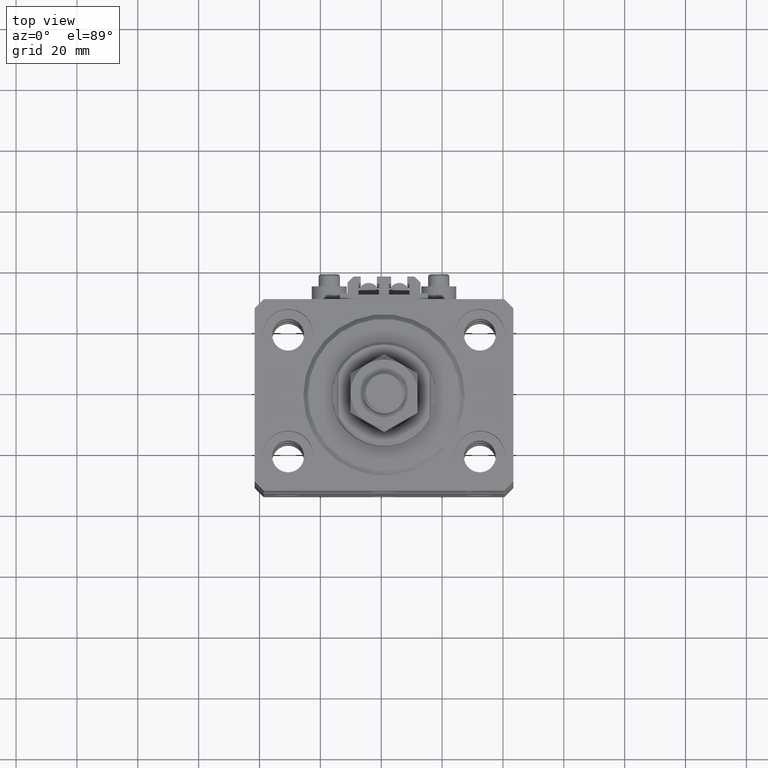
[diagram: clean part render]
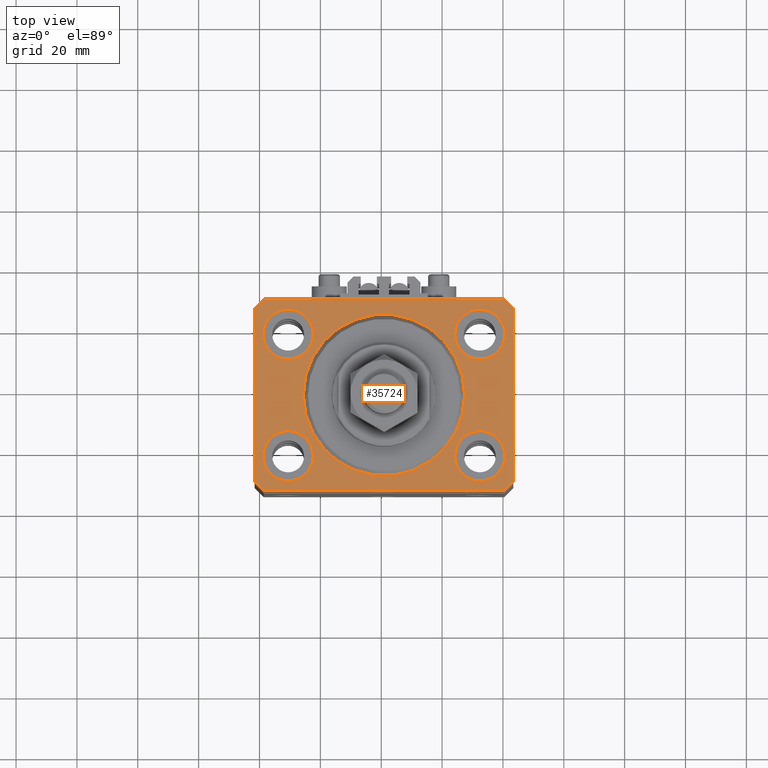
[diagram: same view with one face highlighted and labeled with its STEP entity id]
A machine part, top view. The second image highlights one B-rep face of the part: STEP entity #35724.
In plain terms, the highlighted planar face has unit normal (0, 0, 1).
Its self-contained STEP definition (entity closure, byte-faithful):
#276 = VERTEX_POINT ( 'NONE', #24811 ) ;
#809 = EDGE_CURVE ( 'NONE', #11277, #9018, #39963, .T. ) ;
#961 = EDGE_CURVE ( 'NONE', #9018, #11277, #24472, .T. ) ;
#1113 = PLANE ( 'NONE',  #34952 ) ;
#1136 = DIRECTION ( 'NONE',  ( 0.7071067811865483499, 0.7071067811865466846, 0.000000000000000000 ) ) ;
#2041 = EDGE_LOOP ( 'NONE', ( #31960, #37323 ) ) ;
#2392 = CARTESIAN_POINT ( 'NONE',  ( 42.50000000000051870, 28.49999999999995381, 0.000000000000000000 ) ) ;
#2834 = ORIENTED_EDGE ( 'NONE', *, *, #44734, .F. ) ;
#3242 = AXIS2_PLACEMENT_3D ( 'NONE', #27439, #39952, #12629 ) ;
#3434 = CARTESIAN_POINT ( 'NONE',  ( 0.000000000000000000, 0.000000000000000000, 0.000000000000000000 ) ) ;
#3747 = VERTEX_POINT ( 'NONE', #43837 ) ;
#4176 = FACE_BOUND ( 'NONE', #4763, .T. ) ;
#4757 = DIRECTION ( 'NONE',  ( -0.7071067811865471286, -0.7071067811865479058, 0.000000000000000000 ) ) ;
#4763 = EDGE_LOOP ( 'NONE', ( #33571, #2834 ) ) ;
#5382 = CARTESIAN_POINT ( 'NONE',  ( -42.50000000000000000, -28.50000000000000000, 0.000000000000000000 ) ) ;
#6067 = VECTOR ( 'NONE', #19506, 1000.000000000000000 ) ;
#6221 = CARTESIAN_POINT ( 'NONE',  ( 23.25000000000000355, -20.00000000000000000, 0.000000000000000000 ) ) ;
#6805 = DIRECTION ( 'NONE',  ( 1.000000000000000000, 0.000000000000000000, 0.000000000000000000 ) ) ;
#7392 = DIRECTION ( 'NONE',  ( 0.000000000000000000, 0.000000000000000000, 1.000000000000000000 ) ) ;
#8002 = CARTESIAN_POINT ( 'NONE',  ( 0.000000000000000000, 0.000000000000000000, 0.000000000000000000 ) ) ;
#8266 = FACE_BOUND ( 'NONE', #2041, .T. ) ;
#8522 = CIRCLE ( 'NONE', #16699, 8.250000000000000000 ) ;
#8847 = LINE ( 'NONE', #48166, #41062 ) ;
#9018 = VERTEX_POINT ( 'NONE', #32943 ) ;
#9051 = VERTEX_POINT ( 'NONE', #9440 ) ;
#9245 = DIRECTION ( 'NONE',  ( 0.000000000000000000, -1.000000000000000000, 0.000000000000000000 ) ) ;
#9440 = CARTESIAN_POINT ( 'NONE',  ( -39.50000000000000711, 31.50000000000000000, 0.000000000000000000 ) ) ;
#9830 = EDGE_CURVE ( 'NONE', #44984, #30220, #37388, .T. ) ;
#9903 = CIRCLE ( 'NONE', #26217, 8.249999999999992895 ) ;
#10347 = ORIENTED_EDGE ( 'NONE', *, *, #19353, .T. ) ;
#10356 = DIRECTION ( 'NONE',  ( 0.000000000000000000, 0.000000000000000000, 1.000000000000000000 ) ) ;
#10391 = CARTESIAN_POINT ( 'NONE',  ( 31.50000000000000000, -20.00000000000000000, 0.000000000000000000 ) ) ;
#10861 = ORIENTED_EDGE ( 'NONE', *, *, #809, .F. ) ;
#11277 = VERTEX_POINT ( 'NONE', #16932 ) ;
#11604 = CARTESIAN_POINT ( 'NONE',  ( -39.50000000000000711, -31.50000000000000000, 0.000000000000000000 ) ) ;
#11668 = VECTOR ( 'NONE', #9245, 1000.000000000000000 ) ;
#12530 = EDGE_LOOP ( 'NONE', ( #37161, #12740 ) ) ;
#12612 = AXIS2_PLACEMENT_3D ( 'NONE', #42890, #7392, #38294 ) ;
#12629 = DIRECTION ( 'NONE',  ( 1.000000000000000000, 0.000000000000000000, 0.000000000000000000 ) ) ;
#12715 = EDGE_CURVE ( 'NONE', #15841, #21659, #50018, .T. ) ;
#12740 = ORIENTED_EDGE ( 'NONE', *, *, #36508, .F. ) ;
#13931 = DIRECTION ( 'NONE',  ( 0.000000000000000000, 0.000000000000000000, 1.000000000000000000 ) ) ;
#14156 = EDGE_LOOP ( 'NONE', ( #27503, #45911 ) ) ;
#14193 = DIRECTION ( 'NONE',  ( 1.000000000000000000, 0.000000000000000000, 0.000000000000000000 ) ) ;
#14235 = CIRCLE ( 'NONE', #12612, 8.249999999999992895 ) ;
#14463 = LINE ( 'NONE', #46109, #46526 ) ;
#14717 = EDGE_CURVE ( 'NONE', #276, #3747, #36274, .T. ) ;
#14777 = DIRECTION ( 'NONE',  ( 0.000000000000000000, 0.000000000000000000, 1.000000000000000000 ) ) ;
#14857 = EDGE_CURVE ( 'NONE', #21659, #15841, #14235, .T. ) ;
#15171 = EDGE_CURVE ( 'NONE', #3747, #276, #8522, .T. ) ;
#15221 = ORIENTED_EDGE ( 'NONE', *, *, #24727, .T. ) ;
#15400 = CIRCLE ( 'NONE', #21933, 8.249999999999992895 ) ;
#15673 = FACE_BOUND ( 'NONE', #12530, .T. ) ;
#15841 = VERTEX_POINT ( 'NONE', #23048 ) ;
#16699 = AXIS2_PLACEMENT_3D ( 'NONE', #36212, #19855, #20363 ) ;
#16932 = CARTESIAN_POINT ( 'NONE',  ( -23.25000000000000000, -20.00000000000000000, 0.000000000000000000 ) ) ;
#17401 = DIRECTION ( 'NONE',  ( 0.000000000000000000, 0.000000000000000000, 1.000000000000000000 ) ) ;
#17593 = EDGE_CURVE ( 'NONE', #9051, #19046, #8847, .T. ) ;
#17968 = DIRECTION ( 'NONE',  ( -0.7071067811865356934, 0.7071067811865594521, 0.000000000000000000 ) ) ;
#18334 = VECTOR ( 'NONE', #32878, 1000.000000000000000 ) ;
#18597 = CARTESIAN_POINT ( 'NONE',  ( 31.50000000000000000, 20.00000000000001066, 0.000000000000000000 ) ) ;
#18859 = EDGE_CURVE ( 'NONE', #27591, #40600, #20554, .T. ) ;
#18875 = LINE ( 'NONE', #46702, #47733 ) ;
#19046 = VERTEX_POINT ( 'NONE', #45883 ) ;
#19353 = EDGE_CURVE ( 'NONE', #40672, #27591, #42237, .T. ) ;
#19506 = DIRECTION ( 'NONE',  ( 1.000000000000000000, 0.000000000000000000, 0.000000000000000000 ) ) ;
#19726 = VERTEX_POINT ( 'NONE', #25251 ) ;
#19855 = DIRECTION ( 'NONE',  ( 0.000000000000000000, 0.000000000000000000, 1.000000000000000000 ) ) ;
#20100 = EDGE_CURVE ( 'NONE', #30220, #9051, #25197, .T. ) ;
#20363 = DIRECTION ( 'NONE',  ( 1.000000000000000000, 0.000000000000000000, 0.000000000000000000 ) ) ;
#20554 = LINE ( 'NONE', #36138, #29690 ) ;
#21659 = VERTEX_POINT ( 'NONE', #6221 ) ;
#21933 = AXIS2_PLACEMENT_3D ( 'NONE', #31835, #31579, #35144 ) ;
#21963 = AXIS2_PLACEMENT_3D ( 'NONE', #33352, #13931, #45330 ) ;
#23048 = CARTESIAN_POINT ( 'NONE',  ( 39.74999999999999289, -20.00000000000000000, 0.000000000000000000 ) ) ;
#24074 = DIRECTION ( 'NONE',  ( 0.000000000000000000, 0.000000000000000000, 1.000000000000000000 ) ) ;
#24362 = FACE_BOUND ( 'NONE', #14156, .T. ) ;
#24472 = CIRCLE ( 'NONE', #3242, 8.250000000000000000 ) ;
#24727 = EDGE_CURVE ( 'NONE', #39354, #40672, #18875, .T. ) ;
#24811 = CARTESIAN_POINT ( 'NONE',  ( -23.25000000000000000, 20.00000000000000000, 0.000000000000000000 ) ) ;
#25197 = LINE ( 'NONE', #28279, #18334 ) ;
#25251 = CARTESIAN_POINT ( 'NONE',  ( 26.50000000000000355, 0.000000000000000000, 0.000000000000000000 ) ) ;
#25785 = DIRECTION ( 'NONE',  ( 1.000000000000000000, 0.000000000000000000, 0.000000000000000000 ) ) ;
#25970 = DIRECTION ( 'NONE',  ( 0.000000000000000000, 0.000000000000000000, 1.000000000000000000 ) ) ;
#26103 = CIRCLE ( 'NONE', #42396, 26.50000000000000355 ) ;
#26217 = AXIS2_PLACEMENT_3D ( 'NONE', #18597, #14777, #25785 ) ;
#27040 = DIRECTION ( 'NONE',  ( 0.7071067811865471286, -0.7071067811865479058, 0.000000000000000000 ) ) ;
#27439 = CARTESIAN_POINT ( 'NONE',  ( -31.50000000000000000, -20.00000000000000000, 0.000000000000000000 ) ) ;
#27503 = ORIENTED_EDGE ( 'NONE', *, *, #14717, .F. ) ;
#27591 = VERTEX_POINT ( 'NONE', #39829 ) ;
#28279 = CARTESIAN_POINT ( 'NONE',  ( 39.50000000000056843, 31.50000000000000000, 0.000000000000000000 ) ) ;
#28402 = CARTESIAN_POINT ( 'NONE',  ( -31.50000000000000000, 20.00000000000000000, 0.000000000000000000 ) ) ;
#28659 = LINE ( 'NONE', #47808, #11668 ) ;
#29046 = ORIENTED_EDGE ( 'NONE', *, *, #42278, .T. ) ;
#29085 = EDGE_LOOP ( 'NONE', ( #36841, #31646, #29046, #15221, #10347, #42207, #31861, #50400 ) ) ;
#29690 = VECTOR ( 'NONE', #1136, 1000.000000000000000 ) ;
#30220 = VERTEX_POINT ( 'NONE', #42972 ) ;
#30573 = CARTESIAN_POINT ( 'NONE',  ( -39.50000000000000711, -31.50000000000000000, 0.000000000000000000 ) ) ;
#30972 = CARTESIAN_POINT ( 'NONE',  ( 23.25000000000000355, 20.00000000000001066, 0.000000000000000000 ) ) ;
#31526 = DIRECTION ( 'NONE',  ( 0.000000000000000000, 0.000000000000000000, 1.000000000000000000 ) ) ;
#31579 = DIRECTION ( 'NONE',  ( 0.000000000000000000, 0.000000000000000000, 1.000000000000000000 ) ) ;
#31646 = ORIENTED_EDGE ( 'NONE', *, *, #17593, .T. ) ;
#31748 = CARTESIAN_POINT ( 'NONE',  ( 42.50000000000051870, 28.49999999999995381, 0.000000000000000000 ) ) ;
#31835 = CARTESIAN_POINT ( 'NONE',  ( 31.50000000000000000, 20.00000000000001066, 0.000000000000000000 ) ) ;
#31861 = ORIENTED_EDGE ( 'NONE', *, *, #39090, .T. ) ;
#31960 = ORIENTED_EDGE ( 'NONE', *, *, #12715, .F. ) ;
#32211 = VERTEX_POINT ( 'NONE', #30972 ) ;
#32499 = DIRECTION ( 'NONE',  ( 1.000000000000000000, 0.000000000000000000, 0.000000000000000000 ) ) ;
#32511 = CARTESIAN_POINT ( 'NONE',  ( -26.50000000000000355, 3.245314017740486554E-15, 0.000000000000000000 ) ) ;
#32878 = DIRECTION ( 'NONE',  ( -1.000000000000000000, 0.000000000000000000, 0.000000000000000000 ) ) ;
#32943 = CARTESIAN_POINT ( 'NONE',  ( -39.75000000000000000, -20.00000000000000000, 0.000000000000000000 ) ) ;
#32953 = ORIENTED_EDGE ( 'NONE', *, *, #961, .F. ) ;
#33236 = DIRECTION ( 'NONE',  ( 1.000000000000000000, 0.000000000000000000, 0.000000000000000000 ) ) ;
#33352 = CARTESIAN_POINT ( 'NONE',  ( -31.50000000000000000, -20.00000000000000000, 0.000000000000000000 ) ) ;
#33499 = VERTEX_POINT ( 'NONE', #47941 ) ;
#33571 = ORIENTED_EDGE ( 'NONE', *, *, #42252, .F. ) ;
#34621 = AXIS2_PLACEMENT_3D ( 'NONE', #28402, #24074, #32499 ) ;
#34890 = DIRECTION ( 'NONE',  ( 8.886653596232072440E-15, 1.000000000000000000, 0.000000000000000000 ) ) ;
#34952 = AXIS2_PLACEMENT_3D ( 'NONE', #8002, #31526, #43756 ) ;
#35144 = DIRECTION ( 'NONE',  ( 1.000000000000000000, 0.000000000000000000, 0.000000000000000000 ) ) ;
#35724 = ADVANCED_FACE ( 'NONE', ( #43506, #8266, #15673, #24362, #4176, #47334 ), #1113, .T. ) ;
#36138 = CARTESIAN_POINT ( 'NONE',  ( 39.50000000000000711, -31.50000000000000000, 0.000000000000000000 ) ) ;
#36212 = CARTESIAN_POINT ( 'NONE',  ( -31.50000000000000000, 20.00000000000000000, 0.000000000000000000 ) ) ;
#36274 = CIRCLE ( 'NONE', #34621, 8.250000000000000000 ) ;
#36508 = EDGE_CURVE ( 'NONE', #32211, #33499, #15400, .T. ) ;
#36513 = EDGE_LOOP ( 'NONE', ( #10861, #32953 ) ) ;
#36841 = ORIENTED_EDGE ( 'NONE', *, *, #20100, .T. ) ;
#36896 = VECTOR ( 'NONE', #17968, 1000.000000000000114 ) ;
#37161 = ORIENTED_EDGE ( 'NONE', *, *, #47985, .F. ) ;
#37323 = ORIENTED_EDGE ( 'NONE', *, *, #14857, .F. ) ;
#37388 = LINE ( 'NONE', #2392, #36896 ) ;
#38294 = DIRECTION ( 'NONE',  ( 1.000000000000000000, 0.000000000000000000, 0.000000000000000000 ) ) ;
#39090 = EDGE_CURVE ( 'NONE', #40600, #44984, #14463, .T. ) ;
#39354 = VERTEX_POINT ( 'NONE', #5382 ) ;
#39829 = CARTESIAN_POINT ( 'NONE',  ( 39.50000000000000711, -31.50000000000000000, 0.000000000000000000 ) ) ;
#39952 = DIRECTION ( 'NONE',  ( 0.000000000000000000, 0.000000000000000000, 1.000000000000000000 ) ) ;
#39963 = CIRCLE ( 'NONE', #21963, 8.250000000000000000 ) ;
#40600 = VERTEX_POINT ( 'NONE', #49463 ) ;
#40672 = VERTEX_POINT ( 'NONE', #30573 ) ;
#41062 = VECTOR ( 'NONE', #4757, 1000.000000000000000 ) ;
#42207 = ORIENTED_EDGE ( 'NONE', *, *, #18859, .T. ) ;
#42237 = LINE ( 'NONE', #11604, #6067 ) ;
#42252 = EDGE_CURVE ( 'NONE', #19726, #43432, #46735, .T. ) ;
#42278 = EDGE_CURVE ( 'NONE', #19046, #39354, #28659, .T. ) ;
#42396 = AXIS2_PLACEMENT_3D ( 'NONE', #3434, #10356, #14193 ) ;
#42890 = CARTESIAN_POINT ( 'NONE',  ( 31.50000000000000000, -20.00000000000000000, 0.000000000000000000 ) ) ;
#42972 = CARTESIAN_POINT ( 'NONE',  ( 39.50000000000056843, 31.50000000000000000, 0.000000000000000000 ) ) ;
#43432 = VERTEX_POINT ( 'NONE', #32511 ) ;
#43506 = FACE_BOUND ( 'NONE', #36513, .T. ) ;
#43756 = DIRECTION ( 'NONE',  ( 1.000000000000000000, 0.000000000000000000, -0.000000000000000000 ) ) ;
#43837 = CARTESIAN_POINT ( 'NONE',  ( -39.75000000000000000, 20.00000000000000000, 0.000000000000000000 ) ) ;
#44734 = EDGE_CURVE ( 'NONE', #43432, #19726, #26103, .T. ) ;
#44984 = VERTEX_POINT ( 'NONE', #31748 ) ;
#45330 = DIRECTION ( 'NONE',  ( 1.000000000000000000, 0.000000000000000000, 0.000000000000000000 ) ) ;
#45883 = CARTESIAN_POINT ( 'NONE',  ( -42.50000000000000000, 28.50000000000000000, 0.000000000000000000 ) ) ;
#45911 = ORIENTED_EDGE ( 'NONE', *, *, #15171, .F. ) ;
#45918 = AXIS2_PLACEMENT_3D ( 'NONE', #48050, #17401, #33236 ) ;
#46109 = CARTESIAN_POINT ( 'NONE',  ( 42.50000000000000711, -28.50000000000000355, 0.000000000000000000 ) ) ;
#46526 = VECTOR ( 'NONE', #34890, 1000.000000000000000 ) ;
#46702 = CARTESIAN_POINT ( 'NONE',  ( -42.50000000000000000, -28.50000000000000000, 0.000000000000000000 ) ) ;
#46735 = CIRCLE ( 'NONE', #45918, 26.50000000000000355 ) ;
#47334 = FACE_OUTER_BOUND ( 'NONE', #29085, .T. ) ;
#47733 = VECTOR ( 'NONE', #27040, 1000.000000000000000 ) ;
#47808 = CARTESIAN_POINT ( 'NONE',  ( -42.50000000000000000, 28.50000000000000000, 0.000000000000000000 ) ) ;
#47941 = CARTESIAN_POINT ( 'NONE',  ( 39.74999999999999289, 20.00000000000001066, 0.000000000000000000 ) ) ;
#47985 = EDGE_CURVE ( 'NONE', #33499, #32211, #9903, .T. ) ;
#48050 = CARTESIAN_POINT ( 'NONE',  ( 0.000000000000000000, 0.000000000000000000, 0.000000000000000000 ) ) ;
#48166 = CARTESIAN_POINT ( 'NONE',  ( -39.50000000000000711, 31.50000000000000000, 0.000000000000000000 ) ) ;
#49227 = AXIS2_PLACEMENT_3D ( 'NONE', #10391, #25970, #6805 ) ;
#49463 = CARTESIAN_POINT ( 'NONE',  ( 42.50000000000000711, -28.50000000000000355, 0.000000000000000000 ) ) ;
#50018 = CIRCLE ( 'NONE', #49227, 8.249999999999992895 ) ;
#50400 = ORIENTED_EDGE ( 'NONE', *, *, #9830, .T. ) ;